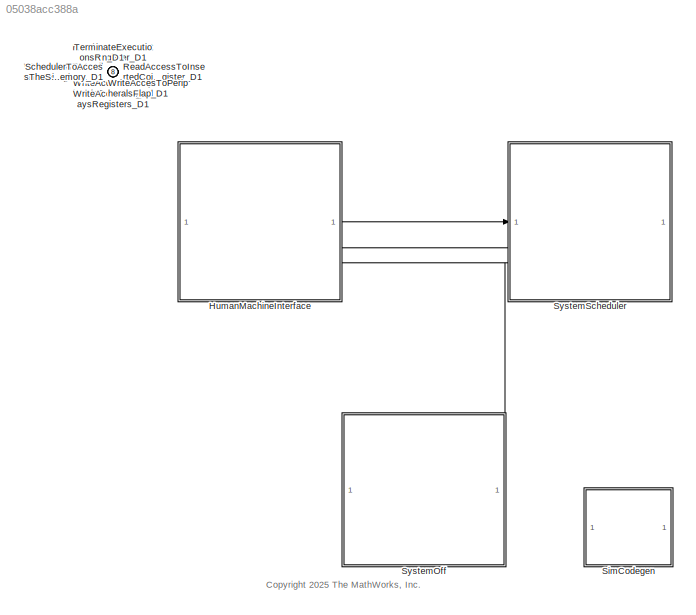
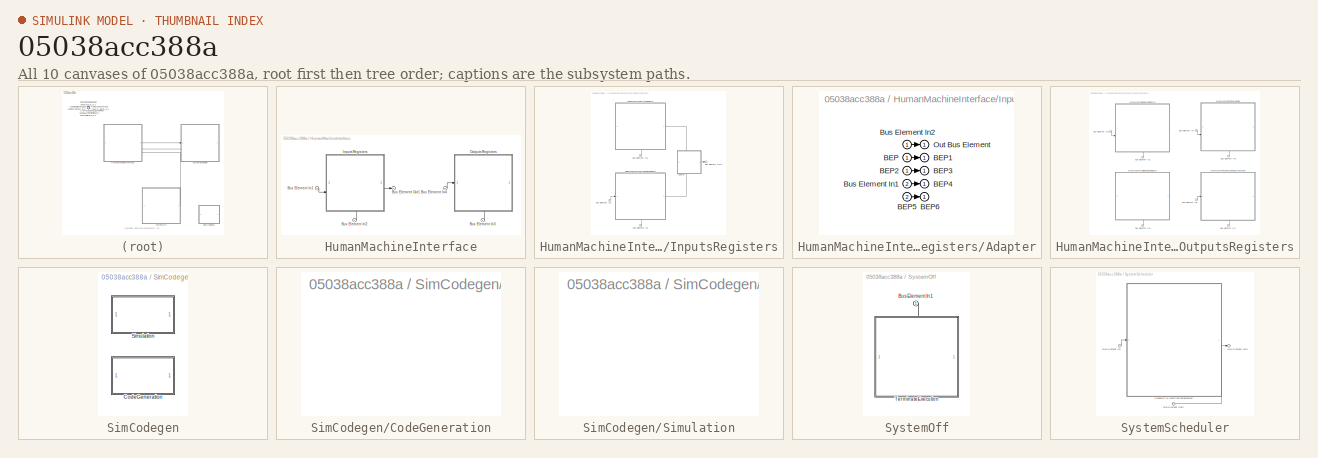
[diagram: thumbnail index - all 10 canvases of the model, root first then tree order]
MODEL slx_05038acc388a
KIND model
CONFIG AbsTol = auto
CONFIG EnableMultiTasking = off
CONFIG FixedStep = SAMPLING_TIME
CONFIG InitFcn = % Assign the right data dictionary based on the selected mode to run\nassignDataDictionary;
CONFIG MaxStep = auto
CONFIG MinStep = auto
CONFIG PostLoadFcn = warning('off','Simulink:SimulationPacing:UnsupportedSimulationMode');
CONFIG PreLoadFcn = % Open the external C# interface\nstartGUI();
CONFIG RelTol = 1e-3
CONFIG SampleTimeConstraint = Unconstrained
CONFIG SolverName = FixedStepDiscrete
CONFIG StartFcn = disp('Referenced models loaded');
CONFIG StartTime = 0.0
CONFIG StopTime = Inf
BLOCK [SubSystem] HumanMachineInterface
  PortSchema = {"entries":[{"content":{"headerSize":26,"margin":15,"minimumSpacing":25,"sides":[{"content":{},"type":"ConnectorPlacement.EquallySpacedRectSide","uuid":"be809503-f1ea-4380-8942-33d79f2ad371"},{"content":{"connectorIds":["Out1","In2"],"side":"RIGHT"},"type":"ConnectorPlacement.EquallySpacedRectSide","uuid":"d20c5475-d043-4994-ac49-3eb74728e760"},{"content":{"side":"TOP"},"type":"ConnectorPlacement....<+403ch>
BLOCK [Inport] HumanMachineInterface/Bus Element In1
  Port = 2
BLOCK [Inport] HumanMachineInterface/Bus Element In2
BLOCK [Inport] HumanMachineInterface/Bus Element In3
BLOCK [Inport] HumanMachineInterface/Bus Element In4
  Port = 2
BLOCK [Outport] HumanMachineInterface/Bus Element Out1
BLOCK [SubSystem] HumanMachineInterface/InputsRegisters
  PortSchema = {"entries":[{"content":{"headerSize":26,"margin":15,"minimumSpacing":25,"sides":[{"content":{"connectorIds":["In2"]},"type":"ConnectorPlacement.EquallySpacedRectSide","uuid":"be809503-f1ea-4380-8942-33d79f2ad371"},{"content":{"connectorIds":["Out1"],"side":"RIGHT"},"type":"ConnectorPlacement.EquallySpacedRectSide","uuid":"d20c5475-d043-4994-ac49-3eb74728e760"},{"content":{"side":"TOP"},"type":"Con...<+419ch>
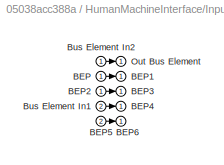
BLOCK [SubSystem] HumanMachineInterface/InputsRegisters/Adapter
  PortSchema = {"entries":[{"content":{"margin":10,"minimumSpacing":15,"sides":[{"content":{},"type":"ConnectorPlacement.EquallySpacedRectSide","uuid":"2123d831-2173-4642-8d7d-b6b2d490bb10"},{"content":{"connectorIds":["Out1"],"side":"RIGHT"},"type":"ConnectorPlacement.EquallySpacedRectSide","uuid":"70a1346a-6760-45e5-891a-b0f2399f5c2b"},{"content":{"connectorIds":["In1"],"side":"TOP"},"type":"ConnectorPlacement...<+404ch>
BLOCK [Inport] HumanMachineInterface/InputsRegisters/Adapter/BEP
BLOCK [Outport] HumanMachineInterface/InputsRegisters/Adapter/BEP1
BLOCK [Inport] HumanMachineInterface/InputsRegisters/Adapter/BEP2
BLOCK [Outport] HumanMachineInterface/InputsRegisters/Adapter/BEP3
BLOCK [Outport] HumanMachineInterface/InputsRegisters/Adapter/BEP4
BLOCK [Inport] HumanMachineInterface/InputsRegisters/Adapter/BEP5
  Port = 2
BLOCK [Outport] HumanMachineInterface/InputsRegisters/Adapter/BEP6
BLOCK [Inport] HumanMachineInterface/InputsRegisters/Adapter/Bus Element In1
  Port = 2
BLOCK [Inport] HumanMachineInterface/InputsRegisters/Adapter/Bus Element In2
BLOCK [Outport] HumanMachineInterface/InputsRegisters/Adapter/Out Bus Element
BLOCK [Inport] HumanMachineInterface/InputsRegisters/Bus Element In1
  Port = 2
BLOCK [Inport] HumanMachineInterface/InputsRegisters/Bus Element In2
BLOCK [Inport] HumanMachineInterface/InputsRegisters/Bus Element In3
BLOCK [Outport] HumanMachineInterface/InputsRegisters/Bus Element Out1
BLOCK [ModelReference] HumanMachineInterface/InputsRegisters/ReadAccessToButtonsRegister
  CachedPortDiscreteRates = [0.0025]
  ModelEventPortInfo = P:D1[0.0025][0][0]
  ModelNameDialog = ButtonsFcn
  ModelReferenceVersion = 11.3
  PortSchema = {"entries":[{"content":{"headerSize":38,"margin":15,"minimumSpacing":25,"sides":[{"content":{},"type":"ConnectorPlacement.EquallySpacedRectSide","uuid":"be809503-f1ea-4380-8942-33d79f2ad371"},{"content":{"connectorIds":["Out1"],"side":"RIGHT"},"type":"ConnectorPlacement.EquallySpacedRectSide","uuid":"d20c5475-d043-4994-ac49-3eb74728e760"},{"content":{"side":"TOP"},"type":"ConnectorPlacement.Equall...<+546ch>
  ScheduleRates = on
BLOCK [ModelReference] HumanMachineInterface/InputsRegisters/ReadAccessToInsertedCoinsRegister
  CachedPortDiscreteRates = [0.0025]
  ModelEventPortInfo = P:D1[0.0025][0][0]
  ModelNameDialog = InsertedCoinsFcn
  ModelReferenceVersion = 11.3
  PortSchema = {"entries":[{"content":{"headerSize":38,"margin":15,"minimumSpacing":25,"sides":[{"content":{"connectorIds":["In1"]},"type":"ConnectorPlacement.EquallySpacedRectSide","uuid":"be809503-f1ea-4380-8942-33d79f2ad371"},{"content":{"connectorIds":["Out1"],"side":"RIGHT"},"type":"ConnectorPlacement.EquallySpacedRectSide","uuid":"d20c5475-d043-4994-ac49-3eb74728e760"},{"content":{"side":"TOP"},"type":"Con...<+568ch>
  ScheduleRates = on
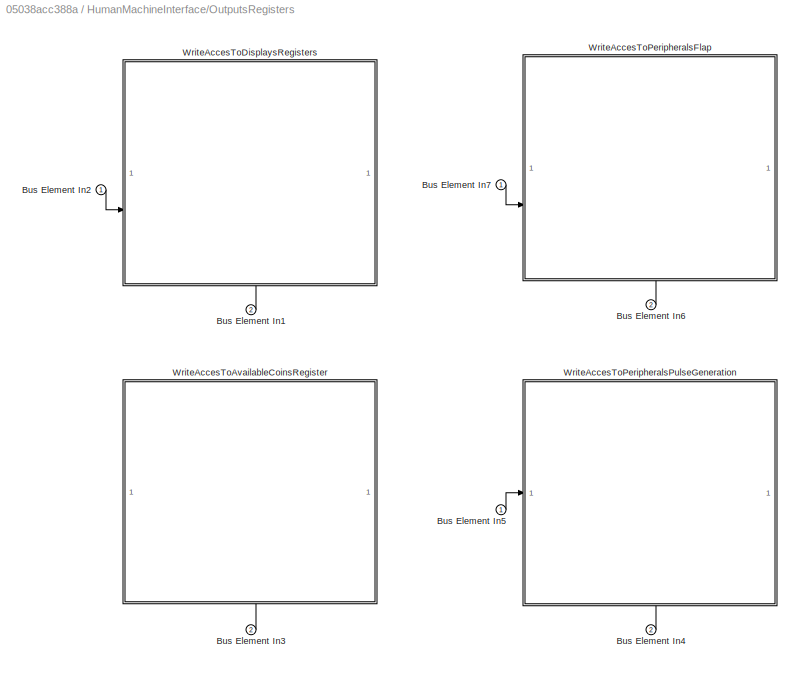
BLOCK [SubSystem] HumanMachineInterface/OutputsRegisters
  PortSchema = {"entries":[{"content":{"headerSize":26,"margin":15,"minimumSpacing":25,"sides":[{"content":{"connectorIds":["In1"]},"type":"ConnectorPlacement.EquallySpacedRectSide","uuid":"be809503-f1ea-4380-8942-33d79f2ad371"},{"content":{"side":"RIGHT"},"type":"ConnectorPlacement.EquallySpacedRectSide","uuid":"d20c5475-d043-4994-ac49-3eb74728e760"},{"content":{"side":"TOP"},"type":"ConnectorPlacement.EquallyS...<+395ch>
BLOCK [Inport] HumanMachineInterface/OutputsRegisters/Bus Element In1
  Port = 2
BLOCK [Inport] HumanMachineInterface/OutputsRegisters/Bus Element In2
BLOCK [Inport] HumanMachineInterface/OutputsRegisters/Bus Element In3
  Port = 2
BLOCK [Inport] HumanMachineInterface/OutputsRegisters/Bus Element In4
  Port = 2
BLOCK [Inport] HumanMachineInterface/OutputsRegisters/Bus Element In5
BLOCK [Inport] HumanMachineInterface/OutputsRegisters/Bus Element In6
  Port = 2
BLOCK [Inport] HumanMachineInterface/OutputsRegisters/Bus Element In7
BLOCK [ModelReference] HumanMachineInterface/OutputsRegisters/WriteAccesToAvailableCoinsRegister
  CachedPortDiscreteRates = [0.0025]
  ModelEventPortInfo = P:D1[0.0025][0][0]
  ModelNameDialog = AvailableCoinsFcn
  ModelReferenceVersion = 11.3
  PortSchema = {"entries":[{"content":{"headerSize":38,"margin":15,"minimumSpacing":25,"sides":[{"content":{},"type":"ConnectorPlacement.EquallySpacedRectSide","uuid":"be809503-f1ea-4380-8942-33d79f2ad371"},{"content":{"side":"RIGHT"},"type":"ConnectorPlacement.EquallySpacedRectSide","uuid":"d20c5475-d043-4994-ac49-3eb74728e760"},{"content":{"side":"TOP"},"type":"ConnectorPlacement.EquallySpacedRectSide","uuid":...<+522ch>
  ScheduleRates = on
BLOCK [ModelReference] HumanMachineInterface/OutputsRegisters/WriteAccesToDisplaysRegisters
  CachedPortDiscreteRates = [0.0025]
  ModelEventPortInfo = P:D1[0.0025][0][0]
  ModelNameDialog = SegmentsDisplaysFcn
  ModelReferenceVersion = 11.3
  PortSchema = {"entries":[{"content":{"headerSize":38,"margin":15,"minimumSpacing":25,"sides":[{"content":{"connectorIds":["In2"]},"type":"ConnectorPlacement.EquallySpacedRectSide","uuid":"be809503-f1ea-4380-8942-33d79f2ad371"},{"content":{"side":"RIGHT"},"type":"ConnectorPlacement.EquallySpacedRectSide","uuid":"d20c5475-d043-4994-ac49-3eb74728e760"},{"content":{"side":"TOP"},"type":"ConnectorPlacement.EquallyS...<+544ch>
  ScheduleRates = on
BLOCK [ModelReference] HumanMachineInterface/OutputsRegisters/WriteAccesToPeripheralsFlap
  CachedPortDiscreteRates = [0.0025]
  ModelEventPortInfo = P:D1[0.0025][0][0]
  ModelNameDialog = FlapFcn
  ModelReferenceVersion = 11.3
  PortSchema = {"entries":[{"content":{"headerSize":38,"margin":15,"minimumSpacing":25,"sides":[{"content":{"connectorIds":["In2"]},"type":"ConnectorPlacement.EquallySpacedRectSide","uuid":"be809503-f1ea-4380-8942-33d79f2ad371"},{"content":{"side":"RIGHT"},"type":"ConnectorPlacement.EquallySpacedRectSide","uuid":"d20c5475-d043-4994-ac49-3eb74728e760"},{"content":{"side":"TOP"},"type":"ConnectorPlacement.EquallyS...<+544ch>
  ScheduleRates = on
BLOCK [ModelReference] HumanMachineInterface/OutputsRegisters/WriteAccesToPeripheralsPulseGeneration
  CachedPortDiscreteRates = [0.15]
  ModelEventPortInfo = P:D1[0.15][0][0]
  ModelNameDialog = GeneratePulseFcn
  ModelReferenceVersion = 11.3
  PortSchema = {"entries":[{"content":{"headerSize":38,"margin":15,"minimumSpacing":25,"sides":[{"content":{"connectorIds":["In1"]},"type":"ConnectorPlacement.EquallySpacedRectSide","uuid":"be809503-f1ea-4380-8942-33d79f2ad371"},{"content":{"side":"RIGHT"},"type":"ConnectorPlacement.EquallySpacedRectSide","uuid":"d20c5475-d043-4994-ac49-3eb74728e760"},{"content":{"side":"TOP"},"type":"ConnectorPlacement.EquallyS...<+544ch>
  ScheduleRates = on
BLOCK [Inport] ReadAccessToButtonsRegister_D1
  OutputFunctionCall = on
  Port = 2
BLOCK [Inport] ReadAccessToInsertedCoinsRegister_D1
  OutputFunctionCall = on
  Port = 3
BLOCK [Inport] SchedulerToAccessTheSharedMemory_D1
  OutputFunctionCall = on
  Port = 8
BLOCK [SubSystem] SimCodegen
  PortSchema = {"entries":[{"content":{"headerSize":38,"margin":15,"minimumSpacing":25,"sides":[{"content":{},"type":"ConnectorPlacement.EquallySpacedRectSide","uuid":"484e6def-1bba-4c5a-88bb-22e3a3a080bf"},{"content":{"side":"RIGHT"},"type":"ConnectorPlacement.EquallySpacedRectSide","uuid":"1abd4651-a862-4957-abe2-c424248ffbbe"},{"content":{"side":"TOP"},"type":"ConnectorPlacement.EquallySpacedRectSide","uuid":...<+224ch>
  Variant = on
  VariantControlMode = sim codegen switching
BLOCK [SubSystem] SimCodegen/CodeGeneration
  PortSchema = {"entries":[{"content":{"headerSize":26,"margin":15,"minimumSpacing":25,"sides":[{"content":{},"type":"ConnectorPlacement.EquallySpacedRectSide","uuid":"4d0f3abe-5f09-4a53-b406-96a471b1431e"},{"content":{"side":"RIGHT"},"type":"ConnectorPlacement.EquallySpacedRectSide","uuid":"0cf42196-2b1b-4979-9cbd-e482e09063e4"},{"content":{"side":"TOP"},"type":"ConnectorPlacement.EquallySpacedRectSide","uuid":...<+224ch>
  VariantControl = (codegen)
BLOCK [SubSystem] SimCodegen/Simulation
  PortSchema = {"entries":[{"content":{"headerSize":26,"margin":15,"minimumSpacing":25,"sides":[{"content":{},"type":"ConnectorPlacement.EquallySpacedRectSide","uuid":"4d0f3abe-5f09-4a53-b406-96a471b1431e"},{"content":{"side":"RIGHT"},"type":"ConnectorPlacement.EquallySpacedRectSide","uuid":"0cf42196-2b1b-4979-9cbd-e482e09063e4"},{"content":{"side":"TOP"},"type":"ConnectorPlacement.EquallySpacedRectSide","uuid":...<+224ch>
  VariantControl = (sim)
BLOCK [SubSystem] SystemOff
  PortSchema = {"entries":[{"content":{"headerSize":26,"margin":15,"minimumSpacing":25,"sides":[{"content":{},"type":"ConnectorPlacement.EquallySpacedRectSide","uuid":"2123d831-2173-4642-8d7d-b6b2d490bb10"},{"content":{"side":"RIGHT"},"type":"ConnectorPlacement.EquallySpacedRectSide","uuid":"70a1346a-6760-45e5-891a-b0f2399f5c2b"},{"content":{"connectorIds":["In1"],"side":"TOP"},"type":"ConnectorPlacement.Equally...<+247ch>
BLOCK [Inport] SystemOff/Bus Element In1
BLOCK [ModelReference] SystemOff/TerminateExecution
  CachedPortDiscreteRates = [0.0025]
  ModelEventPortInfo = P:D1[0.0025][0][0]
  ModelNameDialog = TerminateFcn
  ModelReferenceVersion = 11.3
  PortSchema = {"entries":[{"content":{"headerSize":38,"margin":15,"minimumSpacing":25,"sides":[{"content":{},"type":"ConnectorPlacement.EquallySpacedRectSide","uuid":"be809503-f1ea-4380-8942-33d79f2ad371"},{"content":{"side":"RIGHT"},"type":"ConnectorPlacement.EquallySpacedRectSide","uuid":"d20c5475-d043-4994-ac49-3eb74728e760"},{"content":{"connectorIds":["In1"],"side":"TOP"},"type":"ConnectorPlacement.Equally...<+396ch>
  ScheduleRates = on
BLOCK [SubSystem] SystemScheduler
  PortSchema = {"entries":[{"content":{"headerSize":26,"margin":15,"minimumSpacing":25,"sides":[{"content":{"connectorIds":["In1","Out2"]},"type":"ConnectorPlacement.EquallySpacedRectSide","uuid":"be809503-f1ea-4380-8942-33d79f2ad371"},{"content":{"side":"RIGHT"},"type":"ConnectorPlacement.EquallySpacedRectSide","uuid":"d20c5475-d043-4994-ac49-3eb74728e760"},{"content":{"side":"TOP"},"type":"ConnectorPlacement.E...<+403ch>
BLOCK [Inport] SystemScheduler/Bus Element In1
BLOCK [Outport] SystemScheduler/Bus Element Out1
  Port = 2
BLOCK [Outport] SystemScheduler/Bus Element Out2
BLOCK [ModelReference] SystemScheduler/SchedulerToAccessTheSharedMemory
  CachedPortDiscreteRates = [0.0025]
  ModelEventPortInfo = P:D1[0.0025][0][0]
  ModelNameDialog = Scheduler
  ModelReferenceVersion = 11.4
  PortSchema = {"entries":[{"content":{"headerSize":38,"margin":15,"minimumSpacing":25,"sides":[{"content":{"connectorIds":["In1"]},"type":"ConnectorPlacement.EquallySpacedRectSide","uuid":"be809503-f1ea-4380-8942-33d79f2ad371"},{"content":{"connectorIds":["Out2"],"side":"RIGHT"},"type":"ConnectorPlacement.EquallySpacedRectSide","uuid":"d20c5475-d043-4994-ac49-3eb74728e760"},{"content":{"side":"TOP"},"type":"Con...<+569ch>
  ScheduleRates = on
BLOCK [Inport] TerminateExecution_D1
  OutputFunctionCall = on
  Port = 7
BLOCK [Inport] WriteAccesToAvailableCoinsRegister_D1
  OutputFunctionCall = on
  Port = 4
BLOCK [Inport] WriteAccesToDisplaysRegisters_D1
  OutputFunctionCall = on
  Port = 5
BLOCK [Inport] WriteAccesToPeripheralsFlap_D1
  OutputFunctionCall = on
  Port = 6
BLOCK [Inport] WriteAccesToPeripheralsPulseGeneration_D1
  OutputFunctionCall = on
ANNOTATION (root): <copyright redacted>
LINE HumanMachineInterface/Bus Element In1:1 -> HumanMachineInterface/InputsRegisters:2
LINE HumanMachineInterface/Bus Element In2:1 -> HumanMachineInterface/InputsRegisters:1
LINE HumanMachineInterface/Bus Element In3:1 -> HumanMachineInterface/OutputsRegisters:2
LINE HumanMachineInterface/Bus Element In4:1 -> HumanMachineInterface/OutputsRegisters:1
LINE HumanMachineInterface/InputsRegisters/Adapter/BEP2:1 -> HumanMachineInterface/InputsRegisters/Adapter/BEP3:1
LINE HumanMachineInterface/InputsRegisters/Adapter/BEP5:1 -> HumanMachineInterface/InputsRegisters/Adapter/BEP6:1
LINE HumanMachineInterface/InputsRegisters/Adapter/BEP:1 -> HumanMachineInterface/InputsRegisters/Adapter/BEP1:1
LINE HumanMachineInterface/InputsRegisters/Adapter/Bus Element In1:1 -> HumanMachineInterface/InputsRegisters/Adapter/BEP4:1
LINE HumanMachineInterface/InputsRegisters/Adapter/Bus Element In2:1 -> HumanMachineInterface/InputsRegisters/Adapter/Out Bus Element:1
LINE HumanMachineInterface/InputsRegisters/Adapter:1 -> HumanMachineInterface/InputsRegisters/Bus Element Out1:1
LINE HumanMachineInterface/InputsRegisters/Bus Element In1:1 -> HumanMachineInterface/InputsRegisters/ReadAccessToInsertedCoinsRegister:1
LINE HumanMachineInterface/InputsRegisters/Bus Element In2:1 -> HumanMachineInterface/InputsRegisters/ReadAccessToInsertedCoinsRegister:2
LINE HumanMachineInterface/InputsRegisters/Bus Element In3:1 -> HumanMachineInterface/InputsRegisters/ReadAccessToButtonsRegister:1
LINE HumanMachineInterface/InputsRegisters/ReadAccessToButtonsRegister:1 -> HumanMachineInterface/InputsRegisters/Adapter:1
LINE HumanMachineInterface/InputsRegisters/ReadAccessToInsertedCoinsRegister:1 -> HumanMachineInterface/InputsRegisters/Adapter:2
LINE HumanMachineInterface/InputsRegisters:1 -> HumanMachineInterface/Bus Element Out1:1
LINE HumanMachineInterface/OutputsRegisters/Bus Element In1:1 -> HumanMachineInterface/OutputsRegisters/WriteAccesToDisplaysRegisters:1
LINE HumanMachineInterface/OutputsRegisters/Bus Element In2:1 -> HumanMachineInterface/OutputsRegisters/WriteAccesToDisplaysRegisters:2
LINE HumanMachineInterface/OutputsRegisters/Bus Element In3:1 -> HumanMachineInterface/OutputsRegisters/WriteAccesToAvailableCoinsRegister:1
LINE HumanMachineInterface/OutputsRegisters/Bus Element In4:1 -> HumanMachineInterface/OutputsRegisters/WriteAccesToPeripheralsPulseGeneration:2
LINE HumanMachineInterface/OutputsRegisters/Bus Element In5:1 -> HumanMachineInterface/OutputsRegisters/WriteAccesToPeripheralsPulseGeneration:1
LINE HumanMachineInterface/OutputsRegisters/Bus Element In6:1 -> HumanMachineInterface/OutputsRegisters/WriteAccesToPeripheralsFlap:1
LINE HumanMachineInterface/OutputsRegisters/Bus Element In7:1 -> HumanMachineInterface/OutputsRegisters/WriteAccesToPeripheralsFlap:2
LINE HumanMachineInterface:1 -> SystemScheduler:1
LINE SystemOff/Bus Element In1:1 -> SystemOff/TerminateExecution:1
LINE SystemScheduler/Bus Element In1:1 -> SystemScheduler/SchedulerToAccessTheSharedMemory:1
LINE SystemScheduler/SchedulerToAccessTheSharedMemory:1 -> SystemScheduler/Bus Element Out2:1
LINE SystemScheduler/SchedulerToAccessTheSharedMemory:2 -> SystemScheduler/Bus Element Out1:1
NET SystemScheduler:1 -> HumanMachineInterface:1, SystemOff:1
LINE SystemScheduler:2 -> HumanMachineInterface:2
note: NET lines group one-source signal fan-out (src -> all destinations, sorted); 1:1 wires keep LINE
